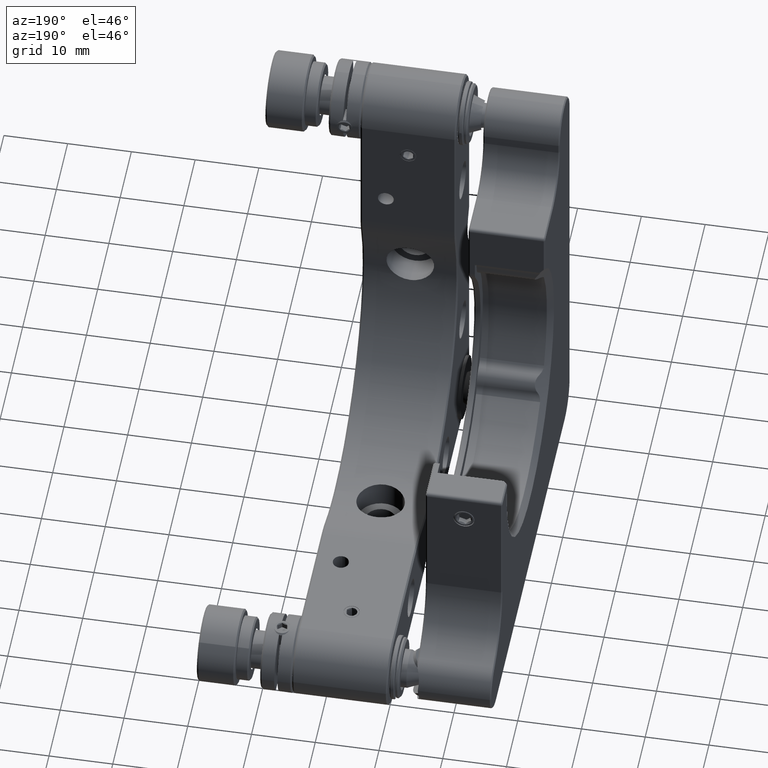
[diagram: clean part render]
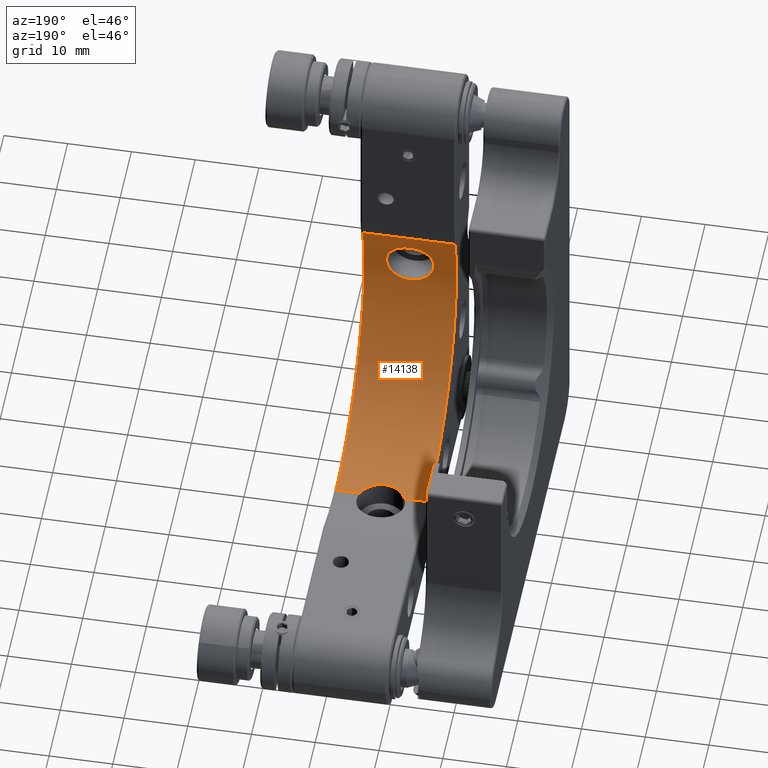
[diagram: same view with one face highlighted and labeled with its STEP entity id]
A machine part, auxiliary view. The second image highlights one B-rep face of the part: STEP entity #14138.
In plain terms, the highlighted cylindrical surface (partial cylindrical patch) has radius 25 mm, axis along (1, -0, -0).
Its self-contained STEP definition (entity closure, byte-faithful):
#70 = CARTESIAN_POINT ( 'NONE',  ( 5.359837681007907584, -27.63956589402238251, 48.63068072765775440 ) ) ;
#144 = CARTESIAN_POINT ( 'NONE',  ( 5.144886200791241038, -27.28040729711149837, 55.25420396532902600 ) ) ;
#175 = LINE ( 'NONE', #4792, #15165 ) ;
#299 = CARTESIAN_POINT ( 'NONE',  ( 10.17648795069958290, -3.382674817008554768, 25.60716494963886092 ) ) ;
#322 = CIRCLE ( 'NONE', #571, 25.00000000000000000 ) ;
#417 = CARTESIAN_POINT ( 'NONE',  ( 7.998620646120388145, -27.61749057859723067, 48.37031997497318514 ) ) ;
#527 = CARTESIAN_POINT ( 'NONE',  ( 10.50324543444559922, -2.717071376953230200, 25.59999999999999787 ) ) ;
#571 = AXIS2_PLACEMENT_3D ( 'NONE', #6806, #4479, #12712 ) ;
#572 = CARTESIAN_POINT ( 'NONE',  ( 10.77493251117789619, -27.69132641396723216, 51.76104253512767173 ) ) ;
#832 = CARTESIAN_POINT ( 'NONE',  ( 7.211515860500705699, -5.066973532479837061, 25.71068582967766147 ) ) ;
#910 = CARTESIAN_POINT ( 'NONE',  ( 3.545515919725623188, -2.717071376953436257, 25.59999999999994102 ) ) ;
#1074 = CARTESIAN_POINT ( 'NONE',  ( 6.779303908246241406, -27.60637630899181261, 48.25000000000010658 ) ) ;
#1138 = DIRECTION ( 'NONE',  ( 1.000000000000000000, -0.000000000000000000, -0.000000000000000000 ) ) ;
#1307 = CARTESIAN_POINT ( 'NONE',  ( 6.776009195348345671, -27.18087116357671107, 55.75000000000011369 ) ) ;
#1579 = CARTESIAN_POINT ( 'NONE',  ( 7.024380677085801494, -27.60637630899181971, 48.25000000000009237 ) ) ;
#1731 = CARTESIAN_POINT ( 'NONE',  ( 9.503939225278598357, -27.35830595356275197, 54.82373745339271665 ) ) ;
#1776 = CARTESIAN_POINT ( 'NONE',  ( 9.433988010448688399, -4.214572373728151078, 25.64401122281898182 ) ) ;
#1849 = CARTESIAN_POINT ( 'NONE',  ( 6.285062893009404128, -4.998190031158276980, 25.70427215535531928 ) ) ;
#1881 = CARTESIAN_POINT ( 'NONE',  ( 10.39214318787033697, -27.52920926336604523, 53.66748633158202608 ) ) ;
#1926 = CARTESIAN_POINT ( 'NONE',  ( 3.886321689371942778, -3.378506596262311756, 25.60823954401037739 ) ) ;
#2073 = CARTESIAN_POINT ( 'NONE',  ( 4.772697626839724094, -4.321494060674769599, 25.65132133190789432 ) ) ;
#2325 = CARTESIAN_POINT ( 'NONE',  ( 3.656907093237677930, -27.52914846302951091, 53.66789129169121964 ) ) ;
#2399 = CARTESIAN_POINT ( 'NONE',  ( 3.469560481130053553, -27.58057967843162217, 53.21860291860777892 ) ) ;
#2551 = LINE ( 'NONE', #5145, #13980 ) ;
#2633 = CIRCLE ( 'NONE', #11390, 25.00000000000000000 ) ;
#2724 = CARTESIAN_POINT ( 'NONE',  ( 8.970347438184948174, -4.528070948196469381, 25.66546066550479921 ) ) ;
#2841 = CARTESIAN_POINT ( 'NONE',  ( 9.315837861735856151, -27.66755583561714005, 49.02131284789191312 ) ) ;
#2919 = CARTESIAN_POINT ( 'NONE',  ( 10.75106845144513379, -27.70143579019380553, 51.51608825213421738 ) ) ;
#2955 = CARTESIAN_POINT ( 'NONE',  ( 9.706210331404808045, -3.964766136768362870, 25.62945556099540312 ) ) ;
#2987 = CARTESIAN_POINT ( 'NONE',  ( 10.39680506529584925, -27.71677555107300250, 50.34167622350543780 ) ) ;
#3059 = CARTESIAN_POINT ( 'NONE',  ( 9.315941301994502766, -27.33104103910643445, 54.97857482214753588 ) ) ;
#3157 = ORIENTED_EDGE ( 'NONE', *, *, #12764, .T. ) ;
#3172 = DIRECTION ( 'NONE',  ( -1.000000000000000000, -0.000000000000000000, -0.000000000000000000 ) ) ;
#3214 = B_SPLINE_CURVE_WITH_KNOTS ( 'NONE', 3,
 ( #14335, #1307, #15344, #12047, #10714, #3575, #144, #13157, #3500, #9690, #9455, #13003, #2325, #2399, #6950, #9372, #6001, #5929, #6084, #15499, #7182, #14492, #14178, #14262, #3423, #13309, #4840, #8216, #70, #8289, #4763, #7107, #1074, #10867 ),
 .UNSPECIFIED., .F., .F.,
 ( 4, 2, 2, 2, 2, 2, 2, 2, 2, 2, 2, 2, 2, 2, 2, 2, 4 ),
 ( 0.000000000000000000, 0.0007343958136860280527, 0.001468791627372056105, 0.002203187441058084266, 0.002937583254744112211, 0.003671979068430139721, 0.004406374882116166798, 0.005140770695802194742, 0.005875166509488221819, 0.006609562323174248896, 0.007343958136860276840, 0.008078353950546304785, 0.008812749764232331862, 0.009547145577918362408, 0.01028154139160438948, 0.01101593720529041830, 0.01175033301897644537 ),
 .UNSPECIFIED. ) ;
#3252 = CARTESIAN_POINT ( 'NONE',  ( 7.762805840674485758, -4.998327655698913574, 25.70428490594891002 ) ) ;
#3423 = CARTESIAN_POINT ( 'NONE',  ( 4.193751374327204573, -27.69468944236207975, 49.52785920444613765 ) ) ;
#3500 = CARTESIAN_POINT ( 'NONE',  ( 4.546006452244269802, -27.35812561769821016, 54.82479183045231963 ) ) ;
#3575 = CARTESIAN_POINT ( 'NONE',  ( 5.359889405027588261, -27.25811601647042082, 55.36931224389559958 ) ) ;
#3620 = VERTEX_POINT ( 'NONE', #11748 ) ;
#3633 = FACE_BOUND ( 'NONE', #13067, .T. ) ;
#3717 = FACE_OUTER_BOUND ( 'NONE', #8716, .T. ) ;
#3933 = CARTESIAN_POINT ( 'NONE',  ( 14.27438067708578728, -2.717071376953227979, 25.59999999999999787 ) ) ;
#4165 = CARTESIAN_POINT ( 'NONE',  ( 7.269406142432477402, -27.60637630899181261, 48.25000000000009948 ) ) ;
#4238 = CARTESIAN_POINT ( 'NONE',  ( 10.58489134106284268, -27.71733018647574553, 50.79748271796741932 ) ) ;
#4331 = B_SPLINE_CURVE_WITH_KNOTS ( 'NONE', 3,
 ( #13480, #13714, #299, #2955, #1776, #2724, #13934, #9286, #6855, #4444, #3252, #10467, #832, #12755, #11563, #1849, #6621, #11643, #12680, #2073, #10390, #5388, #12910, #5616, #1926, #10154, #15178, #910 ),
 .UNSPECIFIED., .F., .F.,
 ( 4, 2, 2, 2, 2, 2, 2, 2, 2, 2, 2, 2, 2, 4 ),
 ( 0.001427612264706271637, 0.002536700207198244045, 0.003645788149690217320, 0.004200332120936203090, 0.004754876092182190594, 0.005309420063428176365, 0.005863964034674162135, 0.006418508005920148772, 0.006973051977166134542, 0.008082139919658103480, 0.008636683890904085781, 0.009191227862150069816, 0.009745771833396053851, 0.01030031580464203789 ),
 .UNSPECIFIED. ) ;
#4350 = CARTESIAN_POINT ( 'NONE',  ( 7.024380677085800606, -27.18087116357671107, 55.75000000000009237 ) ) ;
#4444 = CARTESIAN_POINT ( 'NONE',  ( 7.946743846944658074, -4.956609115471288796, 25.70045260207083260 ) ) ;
#4479 = DIRECTION ( 'NONE',  ( 1.000000000000000000, 0.000000000000000000, 0.000000000000000000 ) ) ;
#4763 = CARTESIAN_POINT ( 'NONE',  ( 6.048375261672358505, -27.61754290295578329, 48.37090652235731625 ) ) ;
#4792 = CARTESIAN_POINT ( 'NONE',  ( -0.4756193229141988943, -26.35992851981038854, 58.72498037674235150 ) ) ;
#4840 = CARTESIAN_POINT ( 'NONE',  ( 4.733206489037154796, -27.66754660420165379, 49.02125062807186850 ) ) ;
#4962 = CARTESIAN_POINT ( 'NONE',  ( 3.545515919725623188, -2.717071376953436257, 25.59999999999994102 ) ) ;
#5145 = CARTESIAN_POINT ( 'NONE',  ( -0.4756193229141988943, -2.717071376953227979, 25.59999999999999787 ) ) ;
#5191 = CARTESIAN_POINT ( 'NONE',  ( 8.905889062782907928, -27.64866970496537135, 48.74680474398331143 ) ) ;
#5350 = CARTESIAN_POINT ( 'NONE',  ( 8.689918657655496759, -27.25823753253767734, 55.36867771854170428 ) ) ;
#5388 = CARTESIAN_POINT ( 'NONE',  ( 4.352751337317120495, -3.955177877865305280, 25.63035858725355709 ) ) ;
#5428 = CARTESIAN_POINT ( 'NONE',  ( 10.00966383695763007, -27.70231803625603106, 49.71728677647207917 ) ) ;
#5501 = CARTESIAN_POINT ( 'NONE',  ( -0.4756193229141988943, -2.717071376953227979, 25.59999999999999787 ) ) ;
#5616 = CARTESIAN_POINT ( 'NONE',  ( 3.991569040608259122, -3.530394176799120043, 25.61281829513099950 ) ) ;
#5730 = CARTESIAN_POINT ( 'NONE',  ( -0.2256193229141847945, -26.35992851981038854, 58.72498037674235150 ) ) ;
#5929 = CARTESIAN_POINT ( 'NONE',  ( 3.273612079630487948, -27.69100686014523660, 51.76732237668960579 ) ) ;
#6001 = CARTESIAN_POINT ( 'NONE',  ( 3.275188149306615504, -27.66331406619910283, 52.25682550046887798 ) ) ;
#6084 = CARTESIAN_POINT ( 'NONE',  ( 3.297346059038670063, -27.70136127314517793, 51.51833919903819492 ) ) ;
#6236 = VERTEX_POINT ( 'NONE', #10234 ) ;
#6585 = CARTESIAN_POINT ( 'NONE',  ( 10.27719086196425913, -27.50157098622030105, 53.88186430803348514 ) ) ;
#6621 = CARTESIAN_POINT ( 'NONE',  ( 6.104586962935186101, -4.957214580229945433, 25.70050799611533066 ) ) ;
#6662 = CARTESIAN_POINT ( 'NONE',  ( 9.504760229277909644, -27.67713431813531244, 49.17682753280612218 ) ) ;
#6806 = CARTESIAN_POINT ( 'NONE',  ( 14.27438067708578728, -2.717071376953227979, 50.60000000000000142 ) ) ;
#6855 = CARTESIAN_POINT ( 'NONE',  ( 8.301830899936973651, -4.847667600729988813, 25.69089424256270604 ) ) ;
#6950 = CARTESIAN_POINT ( 'NONE',  ( 3.397014269550626686, -27.60446453199588746, 52.98250425163667643 ) ) ;
#7107 = CARTESIAN_POINT ( 'NONE',  ( 6.530393961653088830, -27.60873024608982718, 48.27456268803767614 ) ) ;
#7182 = CARTESIAN_POINT ( 'NONE',  ( 3.462349878190323693, -27.71729428694987973, 50.80201293432526199 ) ) ;
#7264 = ORIENTED_EDGE ( 'NONE', *, *, #13929, .T. ) ;
#7535 = CARTESIAN_POINT ( 'NONE',  ( 10.74900248641758971, -27.64597810763503105, 52.49929523761642258 ) ) ;
#7556 = VERTEX_POINT ( 'NONE', #3933 ) ;
#7615 = LINE ( 'NONE', #5501, #14231 ) ;
#7700 = CARTESIAN_POINT ( 'NONE',  ( 8.234979174419624570, -27.62396661760117667, 48.44235906310031936 ) ) ;
#7771 = CARTESIAN_POINT ( 'NONE',  ( 10.58022346896249033, -27.58087905262848949, 53.21586061475695573 ) ) ;
#8216 = CARTESIAN_POINT ( 'NONE',  ( 5.139906233612124176, -27.64880256866501540, 48.74866442017480495 ) ) ;
#8289 = CARTESIAN_POINT ( 'NONE',  ( 5.814262088840852272, -27.62394659829516286, 48.44210332539675079 ) ) ;
#8658 = EDGE_CURVE ( 'NONE', #6236, #7556, #322, .T. ) ;
#8679 = AXIS2_PLACEMENT_3D ( 'NONE', #13298, #1138, #13227 ) ;
#8716 = EDGE_LOOP ( 'NONE', ( #14307, #3157, #14182, #13310, #12436, #7264 ) ) ;
#8866 = CARTESIAN_POINT ( 'NONE',  ( 7.024380677085801494, -27.60637630899181971, 48.25000000000009237 ) ) ;
#8946 = CARTESIAN_POINT ( 'NONE',  ( 7.518034920739029126, -27.18605020449774656, 55.72557614704096807 ) ) ;
#9013 = CARTESIAN_POINT ( 'NONE',  ( 10.00552683383756403, -27.44439821476774455, 54.28800239614901102 ) ) ;
#9071 = EDGE_CURVE ( 'NONE', #15018, #13574, #3214, .T. ) ;
#9286 = CARTESIAN_POINT ( 'NONE',  ( 8.473998697588758233, -4.780495629118097334, 25.68517157399135442 ) ) ;
#9372 = CARTESIAN_POINT ( 'NONE',  ( 3.299701794468033356, -27.64595347915425450, 52.49986886318309587 ) ) ;
#9455 = CARTESIAN_POINT ( 'NONE',  ( 4.046717067186315298, -27.44370677709766326, 54.29269986631825162 ) ) ;
#9690 = CARTESIAN_POINT ( 'NONE',  ( 4.201524336697203488, -27.41467309252193019, 54.48057851423350684 ) ) ;
#9963 = CARTESIAN_POINT ( 'NONE',  ( 9.848048134921423724, -27.41482039436415263, 54.47963825732077225 ) ) ;
#10039 = CARTESIAN_POINT ( 'NONE',  ( 8.906690009323414259, -27.28069865465008803, 55.25270189942674648 ) ) ;
#10118 = CARTESIAN_POINT ( 'NONE',  ( 8.002834742037023830, -27.20617769241555095, 55.62853135337947208 ) ) ;
#10154 = CARTESIAN_POINT ( 'NONE',  ( 3.698146966663146795, -3.058650739895830473, 25.60182185082838657 ) ) ;
#10196 = CARTESIAN_POINT ( 'NONE',  ( 9.851164467170280048, -27.69449757849451643, 49.52373690683523222 ) ) ;
#10234 = CARTESIAN_POINT ( 'NONE',  ( 14.27438067708578728, -26.35992851981038854, 58.72498037674235150 ) ) ;
#10268 = DIRECTION ( 'NONE',  ( 1.000000000000000000, -0.000000000000000000, -0.000000000000000000 ) ) ;
#10390 = CARTESIAN_POINT ( 'NONE',  ( 4.627389881366185342, -4.206992546207304784, 25.64411823040205718 ) ) ;
#10467 = CARTESIAN_POINT ( 'NONE',  ( 7.395841307421880728, -5.053237394695994311, 25.70937749691615437 ) ) ;
#10714 = CARTESIAN_POINT ( 'NONE',  ( 5.813468570324006102, -27.22077425844378951, 55.55759582602078694 ) ) ;
#10867 = CARTESIAN_POINT ( 'NONE',  ( 7.024380677085801494, -27.60637630899181971, 48.25000000000009237 ) ) ;
#11144 = EDGE_CURVE ( 'NONE', #13574, #15018, #15248, .T. ) ;
#11154 = EDGE_CURVE ( 'NONE', #3620, #14604, #7615, .T. ) ;
#11222 = CARTESIAN_POINT ( 'NONE',  ( 8.686966342087812265, -27.63949510485302596, 48.62981207286873797 ) ) ;
#11242 = ORIENTED_EDGE ( 'NONE', *, *, #9071, .T. ) ;
#11296 = CARTESIAN_POINT ( 'NONE',  ( 10.65658662478532825, -27.71442438685829401, 51.03591893454029105 ) ) ;
#11390 = AXIS2_PLACEMENT_3D ( 'NONE', #14656, #3172, #15015 ) ;
#11454 = CARTESIAN_POINT ( 'NONE',  ( 7.024380677085800606, -27.18087116357671107, 55.75000000000009237 ) ) ;
#11563 = CARTESIAN_POINT ( 'NONE',  ( 6.653652887732071086, -5.053351109305843636, 25.70938802999457806 ) ) ;
#11606 = EDGE_CURVE ( 'NONE', #11722, #7556, #2551, .T. ) ;
#11643 = CARTESIAN_POINT ( 'NONE',  ( 5.574325591597572682, -4.795072572591373650, 25.68627515762163327 ) ) ;
#11722 = VERTEX_POINT ( 'NONE', #527 ) ;
#11748 = CARTESIAN_POINT ( 'NONE',  ( -0.2256193229141847945, -2.717071376953227979, 25.59999999999999787 ) ) ;
#12038 = CYLINDRICAL_SURFACE ( 'NONE', #8679, 25.00000000000000000 ) ;
#12047 = CARTESIAN_POINT ( 'NONE',  ( 6.051918289697102438, -27.20588019595081875, 55.62997272523143266 ) ) ;
#12304 = EDGE_CURVE ( 'NONE', #15397, #6236, #175, .T. ) ;
#12436 = ORIENTED_EDGE ( 'NONE', *, *, #11606, .F. ) ;
#12488 = CARTESIAN_POINT ( 'NONE',  ( 10.77380953764697225, -27.66339741595333734, 52.25597451009977590 ) ) ;
#12560 = CARTESIAN_POINT ( 'NONE',  ( 7.272700165626974744, -27.18087116357671462, 55.75000000000009948 ) ) ;
#12680 = CARTESIAN_POINT ( 'NONE',  ( 5.232029918709825367, -4.631661493974208454, 25.67255924867490791 ) ) ;
#12712 = DIRECTION ( 'NONE',  ( 0.000000000000000000, 0.000000000000000000, -1.000000000000000000 ) ) ;
#12755 = CARTESIAN_POINT ( 'NONE',  ( 6.841187663235664296, -5.067168185379824941, 25.71070420842364967 ) ) ;
#12764 = EDGE_CURVE ( 'NONE', #3620, #15397, #2633, .T. ) ;
#12910 = CARTESIAN_POINT ( 'NONE',  ( 4.224215742238317972, -3.818235221310857241, 25.62384773995864506 ) ) ;
#13003 = CARTESIAN_POINT ( 'NONE',  ( 3.772849508559503739, -27.50126104939233329, 53.88427660146733444 ) ) ;
#13067 = EDGE_LOOP ( 'NONE', ( #11242, #13162 ) ) ;
#13157 = CARTESIAN_POINT ( 'NONE',  ( 4.738043267861799634, -27.33034470017399187, 54.98244936010114969 ) ) ;
#13162 = ORIENTED_EDGE ( 'NONE', *, *, #11144, .T. ) ;
#13227 = DIRECTION ( 'NONE',  ( 0.000000000000000000, 0.000000000000000000, -1.000000000000000000 ) ) ;
#13298 = CARTESIAN_POINT ( 'NONE',  ( -0.4756193229141988943, -2.717071376953227979, 50.60000000000000142 ) ) ;
#13309 = CARTESIAN_POINT ( 'NONE',  ( 4.543775341078164054, -27.67714651482087973, 49.17678560331531656 ) ) ;
#13310 = ORIENTED_EDGE ( 'NONE', *, *, #8658, .T. ) ;
#13480 = CARTESIAN_POINT ( 'NONE',  ( 10.50324543444559922, -2.717071376953230200, 25.59999999999999787 ) ) ;
#13574 = VERTEX_POINT ( 'NONE', #1579 ) ;
#13671 = CARTESIAN_POINT ( 'NONE',  ( 7.513272623111895143, -27.60865743177510367, 48.27378137162433802 ) ) ;
#13714 = CARTESIAN_POINT ( 'NONE',  ( 10.36422040711715198, -3.062535139784591021, 25.59999999999998721 ) ) ;
#13816 = CARTESIAN_POINT ( 'NONE',  ( 10.65282510410095362, -27.60487569767768434, 52.97800531538393187 ) ) ;
#13929 = EDGE_CURVE ( 'NONE', #11722, #14604, #4331, .T. ) ;
#13934 = CARTESIAN_POINT ( 'NONE',  ( 8.807735592402725189, -4.621060662932475971, 25.67248067013592205 ) ) ;
#13980 = VECTOR ( 'NONE', #14638, 1000.000000000000000 ) ;
#14138 = ADVANCED_FACE ( 'NONE', ( #3717, #3633 ), #12038, .F. ) ;
#14178 = CARTESIAN_POINT ( 'NONE',  ( 3.766929579951737050, -27.71341124083099317, 50.12610976877144253 ) ) ;
#14182 = ORIENTED_EDGE ( 'NONE', *, *, #12304, .T. ) ;
#14231 = VECTOR ( 'NONE', #10268, 1000.000000000000000 ) ;
#14262 = CARTESIAN_POINT ( 'NONE',  ( 4.038254204849947904, -27.70235577276886119, 49.71844330758010955 ) ) ;
#14307 = ORIENTED_EDGE ( 'NONE', *, *, #11154, .F. ) ;
#14335 = CARTESIAN_POINT ( 'NONE',  ( 7.024380677085800606, -27.18087116357671107, 55.75000000000009237 ) ) ;
#14492 = CARTESIAN_POINT ( 'NONE',  ( 3.649771355182059196, -27.71682158719455913, 50.34614137656080146 ) ) ;
#14526 = DIRECTION ( 'NONE',  ( 1.000000000000000000, -0.000000000000000000, -0.000000000000000000 ) ) ;
#14604 = VERTEX_POINT ( 'NONE', #4962 ) ;
#14638 = DIRECTION ( 'NONE',  ( 1.000000000000000000, -0.000000000000000000, -0.000000000000000000 ) ) ;
#14656 = CARTESIAN_POINT ( 'NONE',  ( -0.2256193229141847945, -2.717071376953227979, 50.60000000000000142 ) ) ;
#14834 = CARTESIAN_POINT ( 'NONE',  ( 10.28163945553521508, -27.71340676640516065, 50.12571067983144957 ) ) ;
#14910 = CARTESIAN_POINT ( 'NONE',  ( 8.239461107331811363, -27.22108248650419426, 55.55606325648921739 ) ) ;
#15015 = DIRECTION ( 'NONE',  ( 0.000000000000000000, 0.000000000000000000, -1.000000000000000000 ) ) ;
#15018 = VERTEX_POINT ( 'NONE', #4350 ) ;
#15165 = VECTOR ( 'NONE', #14526, 1000.000000000000000 ) ;
#15178 = CARTESIAN_POINT ( 'NONE',  ( 3.614852070448750787, -2.889365013496319801, 25.60000000000000497 ) ) ;
#15248 = B_SPLINE_CURVE_WITH_KNOTS ( 'NONE', 3,
 ( #8866, #4165, #13671, #417, #7700, #11222, #5191, #2841, #6662, #10196, #5428, #14834, #2987, #4238, #11296, #2919, #572, #12488, #7535, #13816, #7771, #1881, #6585, #9013, #9963, #1731, #3059, #10039, #5350, #14910, #10118, #8946, #12560, #11454 ),
 .UNSPECIFIED., .F., .F.,
 ( 4, 2, 2, 2, 2, 2, 2, 2, 2, 2, 2, 2, 2, 2, 2, 2, 4 ),
 ( 0.01175033301897644537, 0.01248457509687355381, 0.01321881717477066051, 0.01395305925266776895, 0.01468730133056487565, 0.01542154340846198408, 0.01615578548635909079, 0.01689002756425619922, 0.01762426964215330766, 0.01835851172005041609, 0.01909275379794752106, 0.01982699587584462950, 0.02056123795374173793, 0.02129548003163884290, 0.02202972210953595134, 0.02276396418743305977, 0.02349820626533016821 ),
 .UNSPECIFIED. ) ;
#15344 = CARTESIAN_POINT ( 'NONE',  ( 6.531919951054866225, -27.18605012752162864, 55.72556942146120917 ) ) ;
#15397 = VERTEX_POINT ( 'NONE', #5730 ) ;
#15499 = CARTESIAN_POINT ( 'NONE',  ( 3.391967823290602091, -27.71442262243317600, 51.03648506452247346 ) ) ;